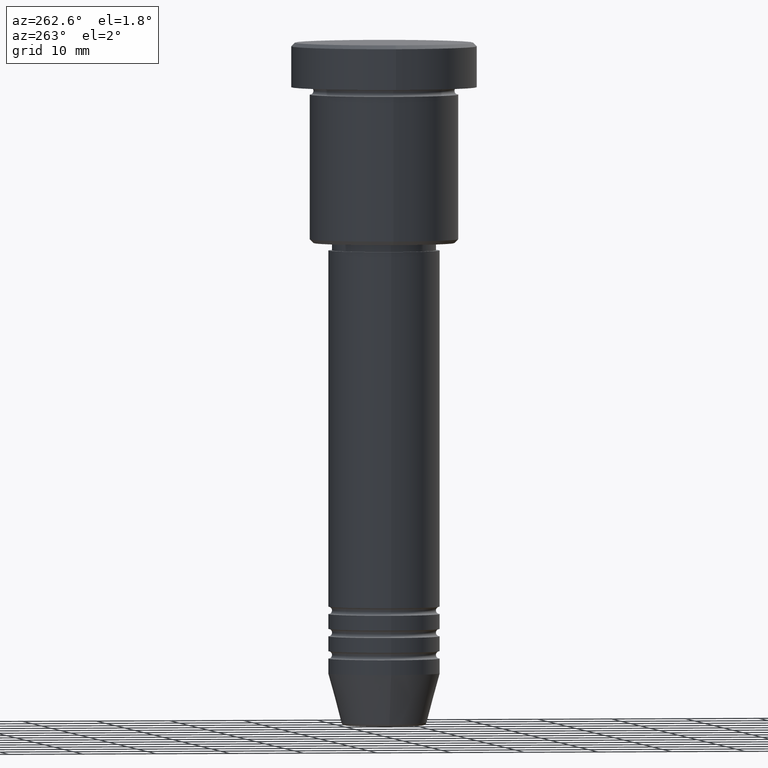
[diagram: clean part render]
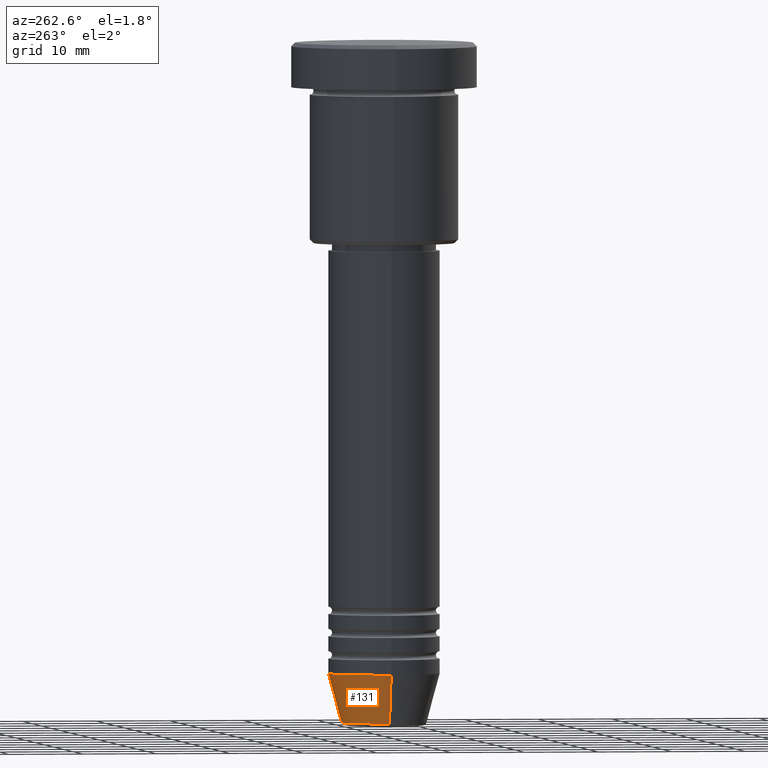
[diagram: same view with one face highlighted and labeled with its STEP entity id]
A machine part, auxiliary view. The second image highlights one B-rep face of the part: STEP entity #131.
In plain terms, the highlighted conical surface has half-angle 15 deg.
Its self-contained STEP definition (entity closure, byte-faithful):
#9 = DIRECTION ( 'NONE',  ( -0.000000000000000000, -0.000000000000000000, 1.000000000000000000 ) ) ;
#49 = AXIS2_PLACEMENT_3D ( 'NONE', #120, #9, #1112 ) ;
#120 = CARTESIAN_POINT ( 'NONE',  ( 0.000000000000000000, 0.000000000000000000, -84.99999999999998579 ) ) ;
#131 = ADVANCED_FACE ( 'NONE', ( #611 ), #1148, .T. ) ;
#210 = VERTEX_POINT ( 'NONE', #1154 ) ;
#212 = LINE ( 'NONE', #746, #298 ) ;
#269 = VERTEX_POINT ( 'NONE', #780 ) ;
#298 = VECTOR ( 'NONE', #916, 1000.000000000000000 ) ;
#319 = CIRCLE ( 'NONE', #49, 7.500000000000000000 ) ;
#342 = DIRECTION ( 'NONE',  ( -0.000000000000000000, -0.000000000000000000, 1.000000000000000000 ) ) ;
#345 = DIRECTION ( 'NONE',  ( 1.000000000000000000, 0.000000000000000000, 0.000000000000000000 ) ) ;
#348 = CARTESIAN_POINT ( 'NONE',  ( 0.000000000000000000, 0.000000000000000000, -91.62940952255125637 ) ) ;
#370 = AXIS2_PLACEMENT_3D ( 'NONE', #348, #442, #438 ) ;
#435 = CARTESIAN_POINT ( 'NONE',  ( 0.000000000000000000, 0.000000000000000000, -84.99999999999998579 ) ) ;
#438 = DIRECTION ( 'NONE',  ( 1.000000000000000000, 0.000000000000000000, 0.000000000000000000 ) ) ;
#442 = DIRECTION ( 'NONE',  ( -0.000000000000000000, -0.000000000000000000, 1.000000000000000000 ) ) ;
#445 = ORIENTED_EDGE ( 'NONE', *, *, #913, .T. ) ;
#552 = ORIENTED_EDGE ( 'NONE', *, *, #589, .F. ) ;
#589 = EDGE_CURVE ( 'NONE', #269, #1164, #319, .T. ) ;
#595 = CIRCLE ( 'NONE', #370, 5.723655072137191269 ) ;
#600 = LINE ( 'NONE', #1069, #999 ) ;
#611 = FACE_OUTER_BOUND ( 'NONE', #838, .T. ) ;
#690 = DIRECTION ( 'NONE',  ( 0.2588190451025213501, 0.000000000000000000, 0.9659258262890680902 ) ) ;
#703 = ORIENTED_EDGE ( 'NONE', *, *, #1132, .T. ) ;
#746 = CARTESIAN_POINT ( 'NONE',  ( -7.500000000000000000, 9.184850993605147944E-16, -84.99999999999998579 ) ) ;
#780 = CARTESIAN_POINT ( 'NONE',  ( 7.500000000000000000, 0.000000000000000000, -84.99999999999998579 ) ) ;
#816 = CARTESIAN_POINT ( 'NONE',  ( -7.500000000000000000, 9.184850993605147944E-16, -84.99999999999998579 ) ) ;
#838 = EDGE_LOOP ( 'NONE', ( #445, #703, #552, #905 ) ) ;
#846 = EDGE_CURVE ( 'NONE', #1131, #269, #600, .T. ) ;
#905 = ORIENTED_EDGE ( 'NONE', *, *, #846, .F. ) ;
#913 = EDGE_CURVE ( 'NONE', #1131, #210, #595, .T. ) ;
#916 = DIRECTION ( 'NONE',  ( -0.2588190451025213501, 3.169619151431772337E-17, 0.9659258262890680902 ) ) ;
#919 = AXIS2_PLACEMENT_3D ( 'NONE', #435, #342, #345 ) ;
#999 = VECTOR ( 'NONE', #690, 1000.000000000000000 ) ;
#1002 = CARTESIAN_POINT ( 'NONE',  ( 5.723655072137191269, 0.000000000000000000, -91.62940952255125637 ) ) ;
#1069 = CARTESIAN_POINT ( 'NONE',  ( 7.500000000000000000, 0.000000000000000000, -84.99999999999998579 ) ) ;
#1112 = DIRECTION ( 'NONE',  ( 1.000000000000000000, 0.000000000000000000, 0.000000000000000000 ) ) ;
#1131 = VERTEX_POINT ( 'NONE', #1002 ) ;
#1132 = EDGE_CURVE ( 'NONE', #210, #1164, #212, .T. ) ;
#1148 = CONICAL_SURFACE ( 'NONE', #919, 7.500000000000000000, 0.2617993877991500740 ) ;
#1154 = CARTESIAN_POINT ( 'NONE',  ( -5.723655072137190380, 8.097153428560735915E-16, -91.62940952255125637 ) ) ;
#1164 = VERTEX_POINT ( 'NONE', #816 ) ;